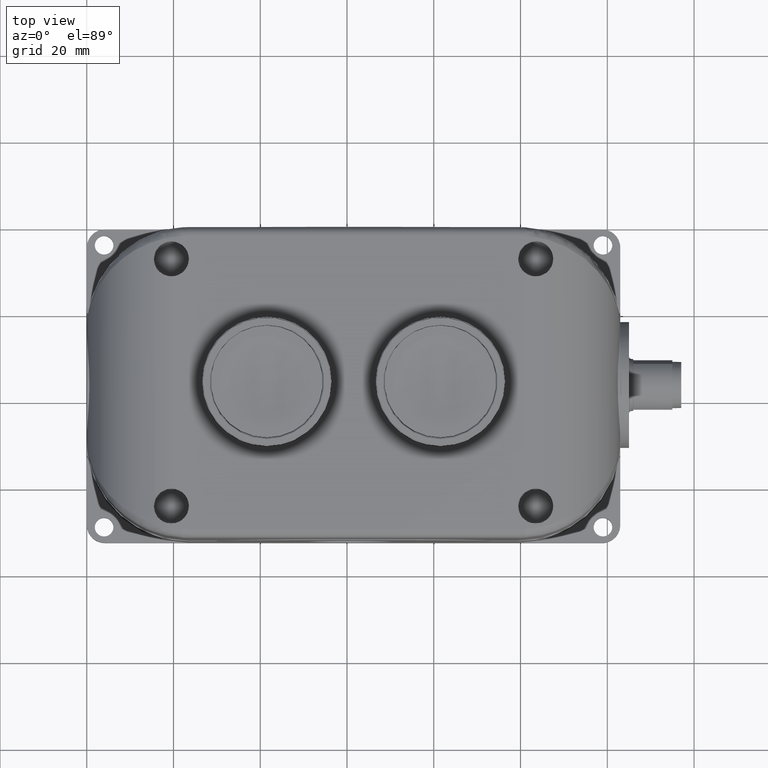
[diagram: clean part render]
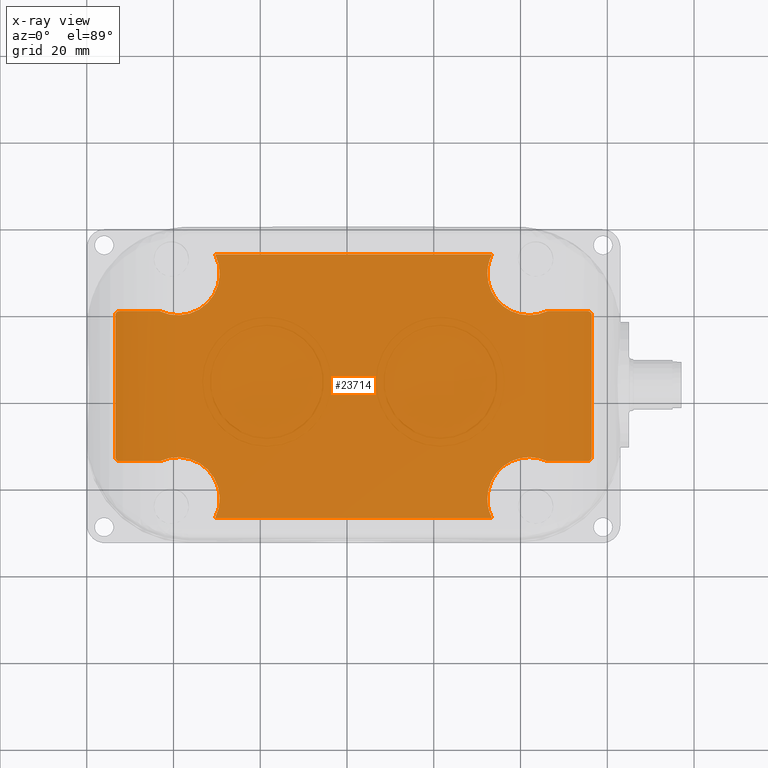
[diagram: x-ray — body ghosted, one internal face saturated and labeled with its STEP entity id]
A machine part, top view, then the same camera in x-ray: the body is ghosted and one INTERNAL B-rep face — a face not visible from any outside direction — is saturated and labeled: STEP entity #23714.
In plain terms, the highlighted planar face has unit normal (0, 0, 1).
Its self-contained STEP definition (entity closure, byte-faithful):
#371 = CARTESIAN_POINT ( 'NONE',  ( 0.2752158539286136407, -2.105153970509655359, 0.1181102362204724116 ) ) ;
#385 = CARTESIAN_POINT ( 'NONE',  ( 0.8267716535433065062, -2.446739806858943655, 0.1181102362204724116 ) ) ;
#471 = EDGE_CURVE ( 'NONE', #6501, #14895, #4025, .T. ) ;
#653 = LINE ( 'NONE', #20645, #11151 ) ;
#686 = EDGE_CURVE ( 'NONE', #6855, #10795, #18864, .T. ) ;
#747 = DIRECTION ( 'NONE',  ( 1.000000000000000000, 0.000000000000000000, 0.000000000000000000 ) ) ;
#1523 = CARTESIAN_POINT ( 'NONE',  ( 4.544240269027538304, -0.7804522937369211544, 0.1181102362204724116 ) ) ;
#1714 = ORIENTED_EDGE ( 'NONE', *, *, #7206, .T. ) ;
#1769 = EDGE_CURVE ( 'NONE', #17657, #4954, #20562, .T. ) ;
#1907 = DIRECTION ( 'NONE',  ( 1.000000000000000000, -7.542733038471202201E-15, 0.000000000000000000 ) ) ;
#1919 = EDGE_CURVE ( 'NONE', #6195, #13167, #653, .T. ) ;
#1933 = VERTEX_POINT ( 'NONE', #13488 ) ;
#2024 = CARTESIAN_POINT ( 'NONE',  ( 4.544241601569696698, -2.105153970509655359, 0.1181102362204724116 ) ) ;
#2054 = CARTESIAN_POINT ( 'NONE',  ( 3.677089654384432915, -0.2273020211609871610, 0.1181102362204724116 ) ) ;
#2344 = VERTEX_POINT ( 'NONE', #22982 ) ;
#2544 = VECTOR ( 'NONE', #19924, 39.37007874015748143 ) ;
#2723 = CARTESIAN_POINT ( 'NONE',  ( 0.2752158539286122529, -0.7410815487200439478, 0.1181102362204724532 ) ) ;
#2804 = VERTEX_POINT ( 'NONE', #4771 ) ;
#2867 = VECTOR ( 'NONE', #5083, 39.37007874015748143 ) ;
#2947 = CARTESIAN_POINT ( 'NONE',  ( 4.572080060930147738, -2.093623017395391361, 0.1181102362204724116 ) ) ;
#3027 = CARTESIAN_POINT ( 'NONE',  ( 4.583611014044413956, -0.7804509611947586523, 0.1181102362204724116 ) ) ;
#3044 = ORIENTED_EDGE ( 'NONE', *, *, #16089, .T. ) ;
#3190 = CARTESIAN_POINT ( 'NONE',  ( 0.6604608598891286153, -0.7410815487200463902, 0.1181102362204724116 ) ) ;
#3412 = CARTESIAN_POINT ( 'NONE',  ( 4.554822686166755119, -0.7410815487200446139, 0.1181102362204724116 ) ) ;
#3423 = DIRECTION ( 'NONE',  ( -0.000000000000000000, -0.000000000000000000, -1.000000000000000000 ) ) ;
#4025 = CIRCLE ( 'NONE', #12929, 0.3799212598425198983 ) ;
#4342 = AXIS2_PLACEMENT_3D ( 'NONE', #20995, #9716, #19054 ) ;
#4493 =( BOUNDED_CURVE ( )  B_SPLINE_CURVE ( 3, ( #12305, #2723, #4661, #12051 ),
 .UNSPECIFIED., .F., .F. ) 
 B_SPLINE_CURVE_WITH_KNOTS ( ( 4, 4 ),
 ( 2.356211413192921711, 3.926973893989728293 ),
 .UNSPECIFIED. ) 
 CURVE ( )  GEOMETRIC_REPRESENTATION_ITEM ( )  RATIONAL_B_SPLINE_CURVE ( ( 1.000000000000000000, 0.8047458316351173702, 0.8047458316351173702, 1.000000000000000000 ) ) 
 REPRESENTATION_ITEM ( '' )  );
#4509 = EDGE_LOOP ( 'NONE', ( #15416, #7546, #12787, #23655, #22633, #13053, #3044, #7647, #13114, #1714, #21835, #9160, #17382, #18862, #18172, #18872, #9916, #10809, #23530, #19853 ) ) ;
#4620 = CARTESIAN_POINT ( 'NONE',  ( 0.2982780834696718841, -2.105153970509655359, 0.1181102362204724116 ) ) ;
#4661 = CARTESIAN_POINT ( 'NONE',  ( 0.2589086709949549592, -0.7573887316537001313, 0.1181102362204724532 ) ) ;
#4771 = CARTESIAN_POINT ( 'NONE',  ( 4.182058825150240189, -2.105153970509652250, 0.1181102362204724116 ) ) ;
#4892 = LINE ( 'NONE', #23560, #2544 ) ;
#4928 = CIRCLE ( 'NONE', #15759, 0.3799212598425193987 ) ;
#4954 = VERTEX_POINT ( 'NONE', #2947 ) ;
#5061 = VERTEX_POINT ( 'NONE', #12861 ) ;
#5083 = DIRECTION ( 'NONE',  ( 1.000000000000000000, 0.000000000000000000, 0.000000000000000000 ) ) ;
#5092 = LINE ( 'NONE', #23268, #17245 ) ;
#5367 = DIRECTION ( 'NONE',  ( 1.000000000000000000, 0.000000000000000000, 0.000000000000000000 ) ) ;
#5523 = AXIS2_PLACEMENT_3D ( 'NONE', #12997, #21743, #12522 ) ;
#5645 = DIRECTION ( 'NONE',  ( 1.700319979423328864E-15, -1.000000000000000000, 0.000000000000000000 ) ) ;
#5711 = CARTESIAN_POINT ( 'NONE',  ( 0.2589086709949572351, -2.065784558034940765, 0.1181102362204724116 ) ) ;
#6195 = VERTEX_POINT ( 'NONE', #21983 ) ;
#6501 = VERTEX_POINT ( 'NONE', #10428 ) ;
#6855 = VERTEX_POINT ( 'NONE', #13026 ) ;
#7053 = CARTESIAN_POINT ( 'NONE',  ( 4.572080060930106882, -0.7526125018342647577, 0.1181102362204724116 ) ) ;
#7111 = CARTESIAN_POINT ( 'NONE',  ( 4.572080060930106882, -0.7526125018342647577, 0.1181102362204724116 ) ) ;
#7206 = EDGE_CURVE ( 'NONE', #14895, #2804, #19465, .T. ) ;
#7546 = ORIENTED_EDGE ( 'NONE', *, *, #15857, .T. ) ;
#7647 = ORIENTED_EDGE ( 'NONE', *, *, #21203, .T. ) ;
#7783 = CARTESIAN_POINT ( 'NONE',  ( 4.583611014044411291, -2.076365642632018282, 0.1181102362204723977 ) ) ;
#7999 = CIRCLE ( 'NONE', #8393, 0.3799212598425197873 ) ;
#8021 = LINE ( 'NONE', #14194, #2867 ) ;
#8121 = VERTEX_POINT ( 'NONE', #12781 ) ;
#8393 = AXIS2_PLACEMENT_3D ( 'NONE', #21972, #3423, #5367 ) ;
#9102 = CARTESIAN_POINT ( 'NONE',  ( 4.564598230873140317, -0.7451306717773210631, 0.1181102362204724116 ) ) ;
#9139 = EDGE_CURVE ( 'NONE', #12745, #18088, #9724, .T. ) ;
#9160 = ORIENTED_EDGE ( 'NONE', *, *, #1769, .T. ) ;
#9262 = LINE ( 'NONE', #16662, #19927 ) ;
#9286 = EDGE_CURVE ( 'NONE', #1933, #6855, #9262, .T. ) ;
#9527 = AXIS2_PLACEMENT_3D ( 'NONE', #1523, #10725, #21655 ) ;
#9591 =( BOUNDED_CURVE ( )  B_SPLINE_CURVE ( 3, ( #7053, #9102, #3412, #12380 ),
 .UNSPECIFIED., .F., .F. ) 
 B_SPLINE_CURVE_WITH_KNOTS ( ( 4, 4 ),
 ( 8.565197162635483451E-15, 0.7853812403968688516 ),
 .UNSPECIFIED. ) 
 CURVE ( )  GEOMETRIC_REPRESENTATION_ITEM ( )  RATIONAL_B_SPLINE_CURVE ( ( 1.000000000000000000, 0.9492551803694591062, 0.9492551803694591062, 1.000000000000000000 ) ) 
 REPRESENTATION_ITEM ( '' )  );
#9603 = DIRECTION ( 'NONE',  ( -0.000000000000000000, -0.000000000000000000, -1.000000000000000000 ) ) ;
#9716 = DIRECTION ( 'NONE',  ( -0.000000000000000000, -0.000000000000000000, -1.000000000000000000 ) ) ;
#9721 = EDGE_CURVE ( 'NONE', #13167, #22457, #16303, .T. ) ;
#9724 =( BOUNDED_CURVE ( )  B_SPLINE_CURVE ( 3, ( #23589, #14378, #16550, #7111 ),
 .UNSPECIFIED., .F., .T. ) 
 B_SPLINE_CURVE_WITH_KNOTS ( ( 4, 4 ),
 ( 5.497804066779656829, 6.283185307179586232 ),
 .UNSPECIFIED. ) 
 CURVE ( )  GEOMETRIC_REPRESENTATION_ITEM ( )  RATIONAL_B_SPLINE_CURVE ( ( 1.000000000000000000, 0.9492551803690676415, 0.9492551803690676415, 1.000000000000000000 ) ) 
 REPRESENTATION_ITEM ( '' )  );
#9916 = ORIENTED_EDGE ( 'NONE', *, *, #1919, .T. ) ;
#10066 = CARTESIAN_POINT ( 'NONE',  ( 4.572080060930147738, -2.093623017395391361, 0.1181102362204724116 ) ) ;
#10323 = CARTESIAN_POINT ( 'NONE',  ( 4.015748031496062076, -2.446739806858943655, 0.1181102362204724116 ) ) ;
#10369 =( BOUNDED_CURVE ( )  B_SPLINE_CURVE ( 3, ( #10066, #16995, #7783, #19040 ),
 .UNSPECIFIED., .F., .F. ) 
 B_SPLINE_CURVE_WITH_KNOTS ( ( 4, 4 ),
 ( 0.000000000000000000, 0.7853812403983893020 ),
 .UNSPECIFIED. ) 
 CURVE ( )  GEOMETRIC_REPRESENTATION_ITEM ( )  RATIONAL_B_SPLINE_CURVE ( ( 1.000000000000000000, 0.9492551803692640400, 0.9492551803692640400, 1.000000000000000000 ) ) 
 REPRESENTATION_ITEM ( '' )  );
#10428 = CARTESIAN_POINT ( 'NONE',  ( 3.677089654384432915, -2.618933498068711785, 0.1181102362204724116 ) ) ;
#10577 = DIRECTION ( 'NONE',  ( -1.000000000000000000, 3.205661541350248471E-15, 0.000000000000000000 ) ) ;
#10680 = VECTOR ( 'NONE', #10577, 39.37007874015748143 ) ;
#10725 = DIRECTION ( 'NONE',  ( 0.000000000000000000, 0.000000000000000000, 1.000000000000000000 ) ) ;
#10795 = VERTEX_POINT ( 'NONE', #4620 ) ;
#10809 = ORIENTED_EDGE ( 'NONE', *, *, #9721, .T. ) ;
#10954 = EDGE_CURVE ( 'NONE', #18088, #6195, #9591, .T. ) ;
#11123 = LINE ( 'NONE', #18520, #18315 ) ;
#11151 = VECTOR ( 'NONE', #17130, 39.37007874015748143 ) ;
#11156 = CARTESIAN_POINT ( 'NONE',  ( 0.2982780834696718841, -2.105153970509655359, 0.1181102362204724116 ) ) ;
#11185 = CARTESIAN_POINT ( 'NONE',  ( 4.544241601569696698, -2.105153970509655359, 0.1181102362204724116 ) ) ;
#11204 = EDGE_CURVE ( 'NONE', #19377, #2344, #18663, .T. ) ;
#11393 = DIRECTION ( 'NONE',  ( -1.000000000000000000, 1.087666484683865692E-16, 0.000000000000000000 ) ) ;
#11819 = EDGE_CURVE ( 'NONE', #2804, #17657, #11123, .T. ) ;
#12018 = EDGE_CURVE ( 'NONE', #22457, #19377, #12473, .T. ) ;
#12051 = CARTESIAN_POINT ( 'NONE',  ( 0.2589086709949547926, -0.7804509611947588743, 0.1181102362204724116 ) ) ;
#12190 = PLANE ( 'NONE',  #9527 ) ;
#12305 = CARTESIAN_POINT ( 'NONE',  ( 0.2982780834696707739, -0.7410815487200451690, 0.1181102362204724116 ) ) ;
#12380 = CARTESIAN_POINT ( 'NONE',  ( 4.544241601569697586, -0.7410815487200449470, 0.1181102362204724116 ) ) ;
#12473 = CIRCLE ( 'NONE', #4342, 0.3799212598425193987 ) ;
#12522 = DIRECTION ( 'NONE',  ( 1.000000000000000000, 0.000000000000000000, 0.000000000000000000 ) ) ;
#12647 = LINE ( 'NONE', #3190, #10680 ) ;
#12739 = CARTESIAN_POINT ( 'NONE',  ( 0.2589086709949570131, -2.088846787575998842, 0.1181102362204724116 ) ) ;
#12745 = VERTEX_POINT ( 'NONE', #3027 ) ;
#12781 = CARTESIAN_POINT ( 'NONE',  ( 0.6604608598891280602, -2.105153970509652694, 0.1181102362204724116 ) ) ;
#12787 = ORIENTED_EDGE ( 'NONE', *, *, #18662, .T. ) ;
#12861 = CARTESIAN_POINT ( 'NONE',  ( 4.583611014044411291, -2.065784558034940765, 0.1181102362204724116 ) ) ;
#12929 = AXIS2_PLACEMENT_3D ( 'NONE', #10323, #19777, #14094 ) ;
#12997 = CARTESIAN_POINT ( 'NONE',  ( 4.015748031496062076, -2.446739806858943655, 0.1181102362204724116 ) ) ;
#13026 = CARTESIAN_POINT ( 'NONE',  ( 0.2589086709949572351, -2.065784558034940765, 0.1181102362204724116 ) ) ;
#13053 = ORIENTED_EDGE ( 'NONE', *, *, #15164, .T. ) ;
#13114 = ORIENTED_EDGE ( 'NONE', *, *, #471, .T. ) ;
#13167 = VERTEX_POINT ( 'NONE', #18316 ) ;
#13488 = CARTESIAN_POINT ( 'NONE',  ( 0.2589086709949547926, -0.7804509611947588743, 0.1181102362204724116 ) ) ;
#13543 = CARTESIAN_POINT ( 'NONE',  ( 4.572080060930106882, -0.7526125018342647577, 0.1181102362204724116 ) ) ;
#13948 = DIRECTION ( 'NONE',  ( 1.000000000000000000, 3.394229867312043988E-15, 0.000000000000000000 ) ) ;
#14094 = DIRECTION ( 'NONE',  ( 1.000000000000000000, 0.000000000000000000, 0.000000000000000000 ) ) ;
#14194 = CARTESIAN_POINT ( 'NONE',  ( 1.165430030654935223, -2.618933498068711785, 0.1181102362204724116 ) ) ;
#14378 = CARTESIAN_POINT ( 'NONE',  ( 4.583611014044413956, -0.7698698765976587088, 0.1181102362204723977 ) ) ;
#14603 = CARTESIAN_POINT ( 'NONE',  ( 4.564598230873176732, -2.101104847452361923, 0.1181102362204723977 ) ) ;
#14706 = DIRECTION ( 'NONE',  ( 1.000000000000000000, 0.000000000000000000, 0.000000000000000000 ) ) ;
#14895 = VERTEX_POINT ( 'NONE', #22086 ) ;
#15164 = EDGE_CURVE ( 'NONE', #10795, #8121, #5092, .T. ) ;
#15416 = ORIENTED_EDGE ( 'NONE', *, *, #19149, .T. ) ;
#15748 = CARTESIAN_POINT ( 'NONE',  ( 0.2982780834696707739, -0.7410815487200451690, 0.1181102362204724116 ) ) ;
#15759 = AXIS2_PLACEMENT_3D ( 'NONE', #385, #20984, #747 ) ;
#15852 = EDGE_CURVE ( 'NONE', #5061, #12745, #4892, .T. ) ;
#15857 = EDGE_CURVE ( 'NONE', #18505, #17538, #12647, .T. ) ;
#16066 = EDGE_CURVE ( 'NONE', #4954, #5061, #10369, .T. ) ;
#16089 = EDGE_CURVE ( 'NONE', #8121, #18224, #4928, .T. ) ;
#16303 = CIRCLE ( 'NONE', #19392, 0.3799212598425193987 ) ;
#16550 = CARTESIAN_POINT ( 'NONE',  ( 4.579561890987104533, -0.7600943318912395386, 0.1181102362204723977 ) ) ;
#16662 = CARTESIAN_POINT ( 'NONE',  ( 0.2589086709949550147, -0.7804509611947588743, 0.1181102362204724116 ) ) ;
#16995 = CARTESIAN_POINT ( 'NONE',  ( 4.579561890987117856, -2.086141187338420355, 0.1181102362204723977 ) ) ;
#17130 = DIRECTION ( 'NONE',  ( -1.000000000000000000, -1.319978281732455415E-15, 0.000000000000000000 ) ) ;
#17245 = VECTOR ( 'NONE', #13948, 39.37007874015748143 ) ;
#17382 = ORIENTED_EDGE ( 'NONE', *, *, #16066, .T. ) ;
#17538 = VERTEX_POINT ( 'NONE', #15748 ) ;
#17657 = VERTEX_POINT ( 'NONE', #2024 ) ;
#17768 = FACE_OUTER_BOUND ( 'NONE', #4509, .T. ) ;
#18088 = VERTEX_POINT ( 'NONE', #13543 ) ;
#18172 = ORIENTED_EDGE ( 'NONE', *, *, #9139, .T. ) ;
#18224 = VERTEX_POINT ( 'NONE', #19483 ) ;
#18315 = VECTOR ( 'NONE', #1907, 39.37007874015748143 ) ;
#18316 = CARTESIAN_POINT ( 'NONE',  ( 4.182058825150240189, -0.7410815487200460572, 0.1181102362204724116 ) ) ;
#18505 = VERTEX_POINT ( 'NONE', #20554 ) ;
#18520 = CARTESIAN_POINT ( 'NONE',  ( 4.182058825150240189, -2.105153970509652694, 0.1181102362204724116 ) ) ;
#18611 = CARTESIAN_POINT ( 'NONE',  ( 3.635826771653543066, -0.3994957123707548186, 0.1181102362204724116 ) ) ;
#18662 = EDGE_CURVE ( 'NONE', #17538, #1933, #4493, .T. ) ;
#18663 = LINE ( 'NONE', #2054, #20602 ) ;
#18862 = ORIENTED_EDGE ( 'NONE', *, *, #15852, .T. ) ;
#18864 =( BOUNDED_CURVE ( )  B_SPLINE_CURVE ( 3, ( #5711, #12739, #371, #11156 ),
 .UNSPECIFIED., .F., .T. ) 
 B_SPLINE_CURVE_WITH_KNOTS ( ( 4, 4 ),
 ( 2.356211413191403814, 3.926973893988189079 ),
 .UNSPECIFIED. ) 
 CURVE ( )  GEOMETRIC_REPRESENTATION_ITEM ( )  RATIONAL_B_SPLINE_CURVE ( ( 1.000000000000000000, 0.8047458316351223662, 0.8047458316351223662, 1.000000000000000000 ) ) 
 REPRESENTATION_ITEM ( '' )  );
#18872 = ORIENTED_EDGE ( 'NONE', *, *, #10954, .T. ) ;
#19040 = CARTESIAN_POINT ( 'NONE',  ( 4.583611014044411291, -2.065784558034940765, 0.1181102362204724116 ) ) ;
#19054 = DIRECTION ( 'NONE',  ( 1.000000000000000000, 0.000000000000000000, 0.000000000000000000 ) ) ;
#19149 = EDGE_CURVE ( 'NONE', #2344, #18505, #7999, .T. ) ;
#19377 = VERTEX_POINT ( 'NONE', #21434 ) ;
#19392 = AXIS2_PLACEMENT_3D ( 'NONE', #20633, #9603, #14706 ) ;
#19465 = CIRCLE ( 'NONE', #5523, 0.3799212598425198983 ) ;
#19483 = CARTESIAN_POINT ( 'NONE',  ( 1.165430030654935223, -2.618933498068711785, 0.1181102362204724116 ) ) ;
#19777 = DIRECTION ( 'NONE',  ( -0.000000000000000000, -0.000000000000000000, -1.000000000000000000 ) ) ;
#19853 = ORIENTED_EDGE ( 'NONE', *, *, #11204, .T. ) ;
#19924 = DIRECTION ( 'NONE',  ( 1.275239984567496352E-15, 1.000000000000000000, -0.000000000000000000 ) ) ;
#19927 = VECTOR ( 'NONE', #5645, 39.37007874015748143 ) ;
#20554 = CARTESIAN_POINT ( 'NONE',  ( 0.6604608598891286153, -0.7410815487200463902, 0.1181102362204724116 ) ) ;
#20562 =( BOUNDED_CURVE ( )  B_SPLINE_CURVE ( 3, ( #11185, #21885, #14603, #22000 ),
 .UNSPECIFIED., .F., .F. ) 
 B_SPLINE_CURVE_WITH_KNOTS ( ( 4, 4 ),
 ( 5.497804066781196930, 6.283185307179586232 ),
 .UNSPECIFIED. ) 
 CURVE ( )  GEOMETRIC_REPRESENTATION_ITEM ( )  RATIONAL_B_SPLINE_CURVE ( ( 1.000000000000000000, 0.9492551803692640400, 0.9492551803692640400, 1.000000000000000000 ) ) 
 REPRESENTATION_ITEM ( '' )  );
#20602 = VECTOR ( 'NONE', #11393, 39.37007874015748143 ) ;
#20633 = CARTESIAN_POINT ( 'NONE',  ( 4.015748031496062076, -0.3994957123707548186, 0.1181102362204724116 ) ) ;
#20645 = CARTESIAN_POINT ( 'NONE',  ( 4.544241601569697586, -0.7410815487200455021, 0.1181102362204724116 ) ) ;
#20984 = DIRECTION ( 'NONE',  ( -0.000000000000000000, -0.000000000000000000, -1.000000000000000000 ) ) ;
#20995 = CARTESIAN_POINT ( 'NONE',  ( 4.015748031496062076, -0.3994957123707548186, 0.1181102362204724116 ) ) ;
#21203 = EDGE_CURVE ( 'NONE', #18224, #6501, #8021, .T. ) ;
#21434 = CARTESIAN_POINT ( 'NONE',  ( 3.677089654384432915, -0.2273020211609871610, 0.1181102362204724116 ) ) ;
#21655 = DIRECTION ( 'NONE',  ( 1.000000000000000000, 0.000000000000000000, -0.000000000000000000 ) ) ;
#21743 = DIRECTION ( 'NONE',  ( -0.000000000000000000, -0.000000000000000000, -1.000000000000000000 ) ) ;
#21835 = ORIENTED_EDGE ( 'NONE', *, *, #11819, .T. ) ;
#21885 = CARTESIAN_POINT ( 'NONE',  ( 4.554822686166773771, -2.105153970509654471, 0.1181102362204723977 ) ) ;
#21972 = CARTESIAN_POINT ( 'NONE',  ( 0.8267716535433065062, -0.3994957123707548186, 0.1181102362204724116 ) ) ;
#21983 = CARTESIAN_POINT ( 'NONE',  ( 4.544241601569697586, -0.7410815487200449470, 0.1181102362204724116 ) ) ;
#22000 = CARTESIAN_POINT ( 'NONE',  ( 4.572080060930147738, -2.093623017395391361, 0.1181102362204724116 ) ) ;
#22086 = CARTESIAN_POINT ( 'NONE',  ( 3.635826771653542178, -2.446739806858943655, 0.1181102362204724116 ) ) ;
#22457 = VERTEX_POINT ( 'NONE', #18611 ) ;
#22633 = ORIENTED_EDGE ( 'NONE', *, *, #686, .T. ) ;
#22982 = CARTESIAN_POINT ( 'NONE',  ( 1.165430030654935667, -0.2273020211609868835, 0.1181102362204724116 ) ) ;
#23268 = CARTESIAN_POINT ( 'NONE',  ( 0.2982780834696718841, -2.105153970509654027, 0.1181102362204724116 ) ) ;
#23530 = ORIENTED_EDGE ( 'NONE', *, *, #12018, .T. ) ;
#23560 = CARTESIAN_POINT ( 'NONE',  ( 4.583611014044413956, -0.7804509611947586523, 0.1181102362204724116 ) ) ;
#23589 = CARTESIAN_POINT ( 'NONE',  ( 4.583611014044413956, -0.7804509611947586523, 0.1181102362204724116 ) ) ;
#23655 = ORIENTED_EDGE ( 'NONE', *, *, #9286, .T. ) ;
#23714 = ADVANCED_FACE ( 'NONE', ( #17768 ), #12190, .T. ) ;